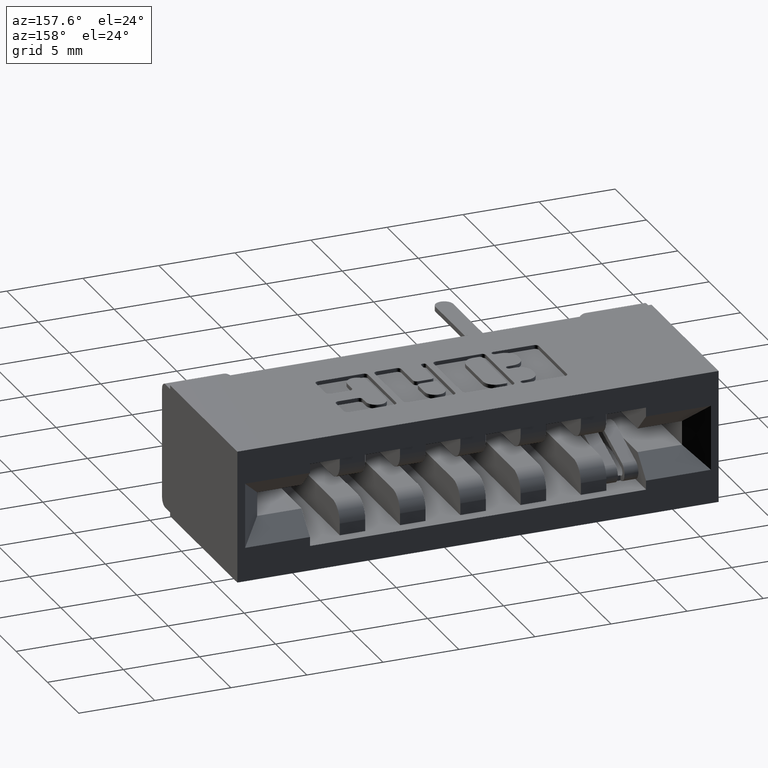
[diagram: clean part render]
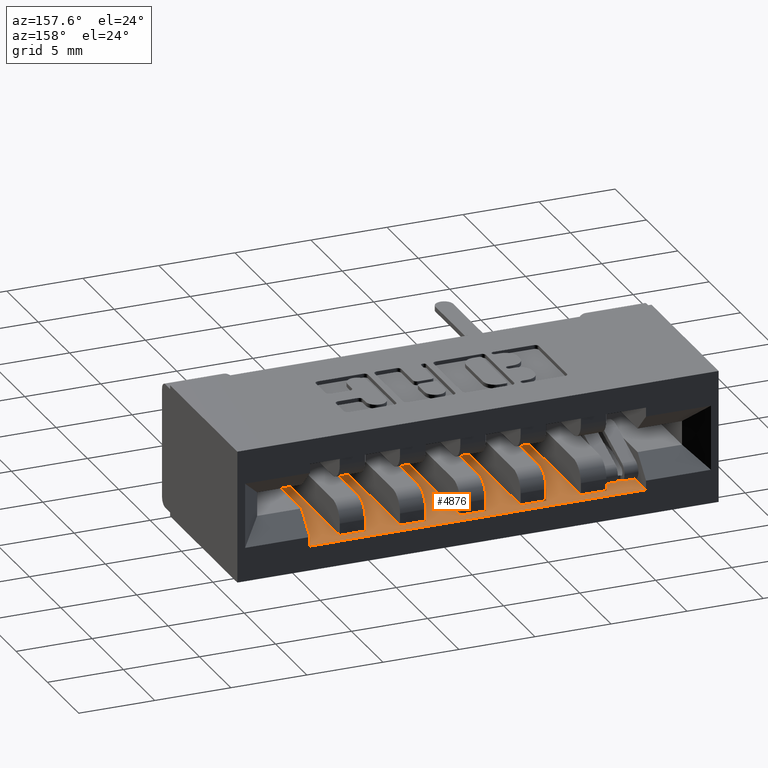
[diagram: same view with one face highlighted and labeled with its STEP entity id]
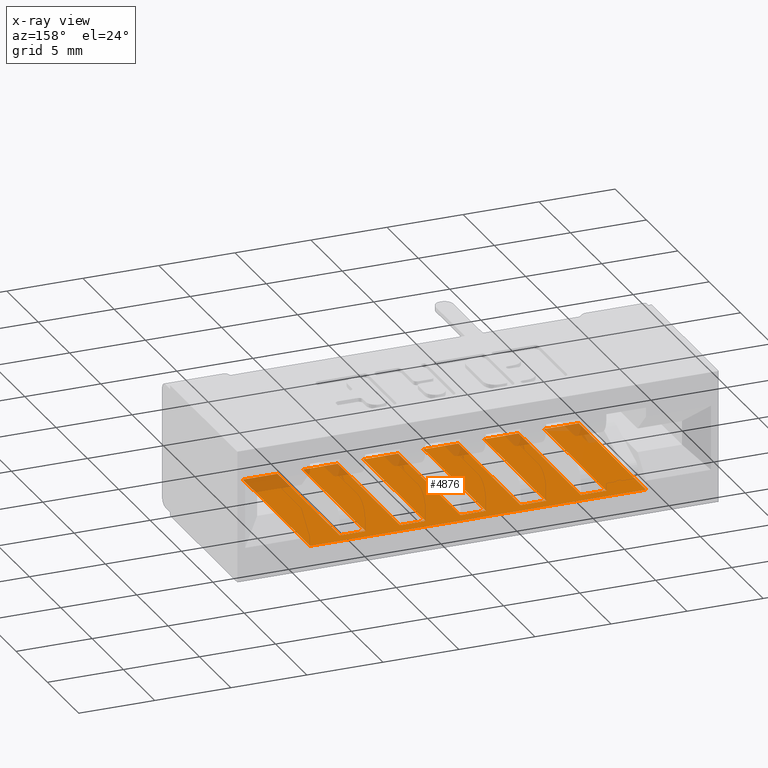
[diagram: x-ray of the same camera — body ghosted, the highlighted face saturated]
A machine part, auxiliary view. The second image highlights one B-rep face of the part: STEP entity #4876.
The next image is the same camera in x-ray: the body ghosted, the highlighted face saturated — about 10% of this face is hidden behind the body in this view.
In plain terms, the highlighted planar face has unit normal (0, 0, -1).
Its self-contained STEP definition (entity closure, byte-faithful):
#99 = EDGE_CURVE ( 'NONE', #7341, #2426, #2929, .T. ) ;
#135 = DIRECTION ( 'NONE',  ( 1.000000000000000000, 0.0000000000000000000, 0.0000000000000000000 ) ) ;
#163 = EDGE_CURVE ( 'NONE', #5952, #2535, #1789, .T. ) ;
#190 = CARTESIAN_POINT ( 'NONE',  ( 1.266000000000000500, 0.1160000000000000100, -0.2790000000000000300 ) ) ;
#215 = CARTESIAN_POINT ( 'NONE',  ( 0.5760000000000004000, 0.05099999999999999700, -0.2790000000000000300 ) ) ;
#326 = VECTOR ( 'NONE', #3238, 39.37007874015748100 ) ;
#376 = DIRECTION ( 'NONE',  ( -0.0000000000000000000, 1.000000000000000000, -0.0000000000000000000 ) ) ;
#386 = CARTESIAN_POINT ( 'NONE',  ( 0.9540000000000004000, 0.1160000000000000100, -0.2790000000000000300 ) ) ;
#393 = VERTEX_POINT ( 'NONE', #7529 ) ;
#422 = CARTESIAN_POINT ( 'NONE',  ( 1.266000000000000500, 0.05099999999999999700, -0.2790000000000000300 ) ) ;
#496 = LINE ( 'NONE', #3005, #6290 ) ;
#749 = DIRECTION ( 'NONE',  ( 1.000000000000000000, 0.0000000000000000000, 0.0000000000000000000 ) ) ;
#794 = VECTOR ( 'NONE', #4899, 39.37007874015748100 ) ;
#1244 = PLANE ( 'NONE',  #6353 ) ;
#1283 = EDGE_CURVE ( 'NONE', #4619, #3731, #8214, .T. ) ;
#1368 = VECTOR ( 'NONE', #8497, 39.37007874015748100 ) ;
#1460 = VERTEX_POINT ( 'NONE', #2305 ) ;
#1499 = VECTOR ( 'NONE', #5869, 39.37007874015748100 ) ;
#1503 = DIRECTION ( 'NONE',  ( 1.000000000000000000, 0.0000000000000000000, 0.0000000000000000000 ) ) ;
#1604 = CARTESIAN_POINT ( 'NONE',  ( 0.8880000000000004600, 0.05099999999999999700, -0.2790000000000000300 ) ) ;
#1638 = EDGE_CURVE ( 'NONE', #4121, #7970, #5990, .T. ) ;
#1644 = VECTOR ( 'NONE', #8508, 39.37007874015748100 ) ;
#1682 = VECTOR ( 'NONE', #2539, 39.37007874015748100 ) ;
#1755 = VECTOR ( 'NONE', #6426, 39.37007874015748100 ) ;
#1781 = EDGE_CURVE ( 'NONE', #4684, #7341, #4886, .T. ) ;
#1789 = LINE ( 'NONE', #3044, #1755 ) ;
#1797 = EDGE_CURVE ( 'NONE', #2352, #393, #496, .T. ) ;
#1856 = DIRECTION ( 'NONE',  ( -0.0000000000000000000, 1.000000000000000000, -0.0000000000000000000 ) ) ;
#1904 = EDGE_CURVE ( 'NONE', #2340, #7356, #6876, .T. ) ;
#1966 = LINE ( 'NONE', #386, #3659 ) ;
#2009 = EDGE_CURVE ( 'NONE', #6434, #4108, #5685, .T. ) ;
#2061 = EDGE_CURVE ( 'NONE', #3285, #2426, #7839, .T. ) ;
#2063 = DIRECTION ( 'NONE',  ( -0.0000000000000000000, 1.000000000000000000, -0.0000000000000000000 ) ) ;
#2305 = CARTESIAN_POINT ( 'NONE',  ( 1.200000000000000400, 0.05099999999999999700, -0.2790000000000000300 ) ) ;
#2340 = VERTEX_POINT ( 'NONE', #3512 ) ;
#2346 = EDGE_CURVE ( 'NONE', #3003, #7065, #8707, .T. ) ;
#2352 = VERTEX_POINT ( 'NONE', #4061 ) ;
#2426 = VERTEX_POINT ( 'NONE', #3026 ) ;
#2432 = CARTESIAN_POINT ( 'NONE',  ( 1.266000000000000500, 0.4419999999999999500, -0.2790000000000000300 ) ) ;
#2535 = VERTEX_POINT ( 'NONE', #4304 ) ;
#2539 = DIRECTION ( 'NONE',  ( -0.0000000000000000000, 1.000000000000000000, -0.0000000000000000000 ) ) ;
#2570 = VECTOR ( 'NONE', #6194, 39.37007874015748100 ) ;
#2648 = EDGE_CURVE ( 'NONE', #2340, #3285, #1966, .T. ) ;
#2756 = LINE ( 'NONE', #4448, #7903 ) ;
#2806 = CARTESIAN_POINT ( 'NONE',  ( 0.5760000000000004000, 0.4419999999999999500, -0.2790000000000000300 ) ) ;
#2830 = EDGE_CURVE ( 'NONE', #3902, #6434, #5885, .T. ) ;
#2846 = CARTESIAN_POINT ( 'NONE',  ( 0.5760000000000004000, 0.05099999999999999700, -0.2790000000000000300 ) ) ;
#2929 = LINE ( 'NONE', #8019, #2570 ) ;
#3003 = VERTEX_POINT ( 'NONE', #6272 ) ;
#3005 = CARTESIAN_POINT ( 'NONE',  ( 1.356000000000000500, 0.4419999999999999500, -0.2790000000000000300 ) ) ;
#3026 = CARTESIAN_POINT ( 'NONE',  ( 0.8880000000000004600, 0.4419999999999999500, -0.2790000000000000300 ) ) ;
#3044 = CARTESIAN_POINT ( 'NONE',  ( 0.4860000000000004300, 0.1160000000000000100, -0.2790000000000000300 ) ) ;
#3238 = DIRECTION ( 'NONE',  ( -1.000000000000000000, -0.0000000000000000000, -0.0000000000000000000 ) ) ;
#3285 = VERTEX_POINT ( 'NONE', #8626 ) ;
#3312 = CARTESIAN_POINT ( 'NONE',  ( 0.4860000000000004300, 0.4419999999999999500, -0.2790000000000000300 ) ) ;
#3317 = LINE ( 'NONE', #7296, #1368 ) ;
#3511 = LINE ( 'NONE', #7579, #8539 ) ;
#3512 = CARTESIAN_POINT ( 'NONE',  ( 0.9540000000000004000, 0.05099999999999999700, -0.2790000000000000300 ) ) ;
#3596 = LINE ( 'NONE', #4700, #1682 ) ;
#3597 = EDGE_CURVE ( 'NONE', #7356, #4108, #2756, .T. ) ;
#3659 = VECTOR ( 'NONE', #1856, 39.37007874015748100 ) ;
#3669 = LINE ( 'NONE', #5627, #1499 ) ;
#3684 = CARTESIAN_POINT ( 'NONE',  ( 0.5760000000000004000, 0.05099999999999999700, -0.2790000000000000300 ) ) ;
#3726 = CARTESIAN_POINT ( 'NONE',  ( 1.044000000000000500, 0.05099999999999999700, -0.2790000000000000300 ) ) ;
#3731 = VERTEX_POINT ( 'NONE', #8549 ) ;
#3736 = EDGE_CURVE ( 'NONE', #3902, #1460, #3511, .T. ) ;
#3789 = VECTOR ( 'NONE', #4131, 39.37007874015748100 ) ;
#3804 = CARTESIAN_POINT ( 'NONE',  ( 0.7980000000000003800, 0.05099999999999999700, -0.2790000000000000300 ) ) ;
#3866 = CARTESIAN_POINT ( 'NONE',  ( 0.5760000000000004000, 0.05099999999999999700, -0.2790000000000000300 ) ) ;
#3902 = VERTEX_POINT ( 'NONE', #7775 ) ;
#3930 = CARTESIAN_POINT ( 'NONE',  ( 0.5760000000000004000, 0.05099999999999999700, -0.2790000000000000300 ) ) ;
#3949 = CARTESIAN_POINT ( 'NONE',  ( 0.6420000000000004600, 0.05099999999999999700, -0.2790000000000000300 ) ) ;
#3969 = EDGE_CURVE ( 'NONE', #5690, #7065, #4849, .T. ) ;
#4061 = CARTESIAN_POINT ( 'NONE',  ( 1.356000000000000500, 0.05100000000000001800, -0.2790000000000000300 ) ) ;
#4108 = VERTEX_POINT ( 'NONE', #6327 ) ;
#4121 = VERTEX_POINT ( 'NONE', #3949 ) ;
#4131 = DIRECTION ( 'NONE',  ( -1.000000000000000000, -0.0000000000000000000, -0.0000000000000000000 ) ) ;
#4164 = VECTOR ( 'NONE', #4565, 39.37007874015748100 ) ;
#4185 = CARTESIAN_POINT ( 'NONE',  ( 0.7320000000000004300, 0.4419999999999999500, -0.2790000000000000300 ) ) ;
#4192 = CARTESIAN_POINT ( 'NONE',  ( 0.4860000000000004300, 0.4419999999999999500, -0.2790000000000000300 ) ) ;
#4247 = DIRECTION ( 'NONE',  ( -0.0000000000000000000, 1.000000000000000000, -0.0000000000000000000 ) ) ;
#4260 = EDGE_CURVE ( 'NONE', #6431, #6043, #4839, .T. ) ;
#4304 = CARTESIAN_POINT ( 'NONE',  ( 0.4860000000000004300, 0.4729999999999999800, -0.2790000000000000300 ) ) ;
#4314 = CARTESIAN_POINT ( 'NONE',  ( 0.5760000000000004000, 0.05099999999999999700, -0.2790000000000000300 ) ) ;
#4383 = LINE ( 'NONE', #4509, #4164 ) ;
#4448 = CARTESIAN_POINT ( 'NONE',  ( 1.044000000000000500, 0.1160000000000000100, -0.2790000000000000300 ) ) ;
#4449 = CARTESIAN_POINT ( 'NONE',  ( 0.5760000000000004000, 0.1160000000000000100, -0.2790000000000000300 ) ) ;
#4509 = CARTESIAN_POINT ( 'NONE',  ( 0.7320000000000004300, 0.1160000000000000100, -0.2790000000000000300 ) ) ;
#4565 = DIRECTION ( 'NONE',  ( -0.0000000000000000000, 1.000000000000000000, -0.0000000000000000000 ) ) ;
#4604 = VERTEX_POINT ( 'NONE', #422 ) ;
#4619 = VERTEX_POINT ( 'NONE', #2432 ) ;
#4684 = VERTEX_POINT ( 'NONE', #3804 ) ;
#4700 = CARTESIAN_POINT ( 'NONE',  ( 1.200000000000000400, 0.1160000000000000100, -0.2790000000000000300 ) ) ;
#4737 = LINE ( 'NONE', #190, #7964 ) ;
#4740 = FACE_OUTER_BOUND ( 'NONE', #5635, .T. ) ;
#4795 = VECTOR ( 'NONE', #7120, 39.37007874015748100 ) ;
#4834 = EDGE_CURVE ( 'NONE', #5952, #5690, #8342, .T. ) ;
#4839 = LINE ( 'NONE', #4884, #794 ) ;
#4849 = LINE ( 'NONE', #4449, #8080 ) ;
#4876 = ADVANCED_FACE ( 'NONE', ( #4740 ), #1244, .F. ) ;
#4884 = CARTESIAN_POINT ( 'NONE',  ( 0.4860000000000004300, 0.4419999999999999500, -0.2790000000000000300 ) ) ;
#4886 = LINE ( 'NONE', #3930, #6471 ) ;
#4899 = DIRECTION ( 'NONE',  ( -1.000000000000000000, -0.0000000000000000000, -0.0000000000000000000 ) ) ;
#4926 = CARTESIAN_POINT ( 'NONE',  ( 0.4860000000000004300, 0.4419999999999999500, -0.2790000000000000300 ) ) ;
#4993 = DIRECTION ( 'NONE',  ( -0.0000000000000000000, 1.000000000000000000, -0.0000000000000000000 ) ) ;
#5145 = EDGE_CURVE ( 'NONE', #4604, #4619, #4737, .T. ) ;
#5311 = EDGE_CURVE ( 'NONE', #1460, #3731, #3596, .T. ) ;
#5459 = VECTOR ( 'NONE', #6453, 39.37007874015748100 ) ;
#5563 = VECTOR ( 'NONE', #7564, 39.37007874015748100 ) ;
#5588 = CARTESIAN_POINT ( 'NONE',  ( 0.7320000000000004300, 0.05099999999999999700, -0.2790000000000000300 ) ) ;
#5627 = CARTESIAN_POINT ( 'NONE',  ( 0.6420000000000004600, 0.1160000000000000100, -0.2790000000000000300 ) ) ;
#5635 = EDGE_LOOP ( 'NONE', ( #7519, #7527, #7546, #7562, #7568, #7588, #7591, #7593, #7605, #7613, #7629, #7667, #7676, #7680, #7726, #7736, #7759, #7791, #7793, #7802, #7812, #7819, #7844, #7854 ) ) ;
#5685 = LINE ( 'NONE', #8814, #1644 ) ;
#5690 = VERTEX_POINT ( 'NONE', #3684 ) ;
#5869 = DIRECTION ( 'NONE',  ( -0.0000000000000000000, 1.000000000000000000, -0.0000000000000000000 ) ) ;
#5885 = LINE ( 'NONE', #7541, #5459 ) ;
#5952 = VERTEX_POINT ( 'NONE', #6266 ) ;
#5990 = LINE ( 'NONE', #3866, #9107 ) ;
#6043 = VERTEX_POINT ( 'NONE', #4185 ) ;
#6194 = DIRECTION ( 'NONE',  ( -0.0000000000000000000, 1.000000000000000000, -0.0000000000000000000 ) ) ;
#6266 = CARTESIAN_POINT ( 'NONE',  ( 0.4860000000000004300, 0.05099999999999999700, -0.2790000000000000300 ) ) ;
#6272 = CARTESIAN_POINT ( 'NONE',  ( 0.6420000000000004600, 0.4419999999999999500, -0.2790000000000000300 ) ) ;
#6290 = VECTOR ( 'NONE', #4247, 39.37007874015748100 ) ;
#6327 = CARTESIAN_POINT ( 'NONE',  ( 1.044000000000000500, 0.4419999999999999500, -0.2790000000000000300 ) ) ;
#6353 = AXIS2_PLACEMENT_3D ( 'NONE', #8372, #7621, #7597 ) ;
#6426 = DIRECTION ( 'NONE',  ( -0.0000000000000000000, 1.000000000000000000, -0.0000000000000000000 ) ) ;
#6431 = VERTEX_POINT ( 'NONE', #8564 ) ;
#6434 = VERTEX_POINT ( 'NONE', #7850 ) ;
#6453 = DIRECTION ( 'NONE',  ( -0.0000000000000000000, 1.000000000000000000, -0.0000000000000000000 ) ) ;
#6471 = VECTOR ( 'NONE', #135, 39.37007874015748100 ) ;
#6529 = VECTOR ( 'NONE', #9074, 39.37007874015748100 ) ;
#6744 = DIRECTION ( 'NONE',  ( 1.000000000000000000, 0.0000000000000000000, 0.0000000000000000000 ) ) ;
#6876 = LINE ( 'NONE', #215, #8307 ) ;
#7065 = VERTEX_POINT ( 'NONE', #2806 ) ;
#7120 = DIRECTION ( 'NONE',  ( -1.000000000000000000, -0.0000000000000000000, -0.0000000000000000000 ) ) ;
#7296 = CARTESIAN_POINT ( 'NONE',  ( 0.7980000000000003800, 0.1160000000000000100, -0.2790000000000000300 ) ) ;
#7341 = VERTEX_POINT ( 'NONE', #1604 ) ;
#7356 = VERTEX_POINT ( 'NONE', #3726 ) ;
#7477 = DIRECTION ( 'NONE',  ( 1.000000000000000000, 0.0000000000000000000, 0.0000000000000000000 ) ) ;
#7519 = ORIENTED_EDGE ( 'NONE', *, *, #5145, .F. ) ;
#7527 = ORIENTED_EDGE ( 'NONE', *, *, #7702, .T. ) ;
#7529 = CARTESIAN_POINT ( 'NONE',  ( 1.356000000000000500, 0.4729999999999999800, -0.2790000000000000300 ) ) ;
#7541 = CARTESIAN_POINT ( 'NONE',  ( 1.110000000000000500, 0.1160000000000000100, -0.2790000000000000300 ) ) ;
#7546 = ORIENTED_EDGE ( 'NONE', *, *, #1797, .T. ) ;
#7562 = ORIENTED_EDGE ( 'NONE', *, *, #8790, .T. ) ;
#7564 = DIRECTION ( 'NONE',  ( -1.000000000000000000, 0.0000000000000000000, 0.0000000000000000000 ) ) ;
#7568 = ORIENTED_EDGE ( 'NONE', *, *, #163, .F. ) ;
#7579 = CARTESIAN_POINT ( 'NONE',  ( 0.5760000000000004000, 0.05099999999999999700, -0.2790000000000000300 ) ) ;
#7588 = ORIENTED_EDGE ( 'NONE', *, *, #4834, .T. ) ;
#7591 = ORIENTED_EDGE ( 'NONE', *, *, #3969, .T. ) ;
#7593 = ORIENTED_EDGE ( 'NONE', *, *, #2346, .F. ) ;
#7597 = DIRECTION ( 'NONE',  ( -1.000000000000000000, 0.0000000000000000000, 0.0000000000000000000 ) ) ;
#7605 = ORIENTED_EDGE ( 'NONE', *, *, #7994, .F. ) ;
#7613 = ORIENTED_EDGE ( 'NONE', *, *, #1638, .T. ) ;
#7621 = DIRECTION ( 'NONE',  ( -0.0000000000000000000, 0.0000000000000000000, -1.000000000000000000 ) ) ;
#7629 = ORIENTED_EDGE ( 'NONE', *, *, #7824, .T. ) ;
#7667 = ORIENTED_EDGE ( 'NONE', *, *, #4260, .F. ) ;
#7676 = ORIENTED_EDGE ( 'NONE', *, *, #7758, .F. ) ;
#7680 = ORIENTED_EDGE ( 'NONE', *, *, #1781, .T. ) ;
#7702 = EDGE_CURVE ( 'NONE', #4604, #2352, #9056, .T. ) ;
#7726 = ORIENTED_EDGE ( 'NONE', *, *, #99, .T. ) ;
#7736 = ORIENTED_EDGE ( 'NONE', *, *, #2061, .F. ) ;
#7758 = EDGE_CURVE ( 'NONE', #4684, #6431, #3317, .T. ) ;
#7759 = ORIENTED_EDGE ( 'NONE', *, *, #2648, .F. ) ;
#7775 = CARTESIAN_POINT ( 'NONE',  ( 1.110000000000000500, 0.05099999999999999700, -0.2790000000000000300 ) ) ;
#7791 = ORIENTED_EDGE ( 'NONE', *, *, #1904, .T. ) ;
#7793 = ORIENTED_EDGE ( 'NONE', *, *, #3597, .T. ) ;
#7802 = ORIENTED_EDGE ( 'NONE', *, *, #2009, .F. ) ;
#7812 = ORIENTED_EDGE ( 'NONE', *, *, #2830, .F. ) ;
#7819 = ORIENTED_EDGE ( 'NONE', *, *, #3736, .T. ) ;
#7824 = EDGE_CURVE ( 'NONE', #7970, #6043, #4383, .T. ) ;
#7839 = LINE ( 'NONE', #3312, #326 ) ;
#7844 = ORIENTED_EDGE ( 'NONE', *, *, #5311, .T. ) ;
#7850 = CARTESIAN_POINT ( 'NONE',  ( 1.110000000000000500, 0.4419999999999999500, -0.2790000000000000300 ) ) ;
#7854 = ORIENTED_EDGE ( 'NONE', *, *, #1283, .F. ) ;
#7903 = VECTOR ( 'NONE', #376, 39.37007874015748100 ) ;
#7964 = VECTOR ( 'NONE', #4993, 39.37007874015748100 ) ;
#7970 = VERTEX_POINT ( 'NONE', #5588 ) ;
#7994 = EDGE_CURVE ( 'NONE', #4121, #3003, #3669, .T. ) ;
#8019 = CARTESIAN_POINT ( 'NONE',  ( 0.8880000000000004600, 0.1160000000000000100, -0.2790000000000000300 ) ) ;
#8080 = VECTOR ( 'NONE', #2063, 39.37007874015748100 ) ;
#8214 = LINE ( 'NONE', #4192, #4795 ) ;
#8307 = VECTOR ( 'NONE', #749, 39.37007874015748100 ) ;
#8342 = LINE ( 'NONE', #4314, #6529 ) ;
#8372 = CARTESIAN_POINT ( 'NONE',  ( 0.5760000000000004000, 0.1160000000000000100, -0.2790000000000000300 ) ) ;
#8497 = DIRECTION ( 'NONE',  ( -0.0000000000000000000, 1.000000000000000000, -0.0000000000000000000 ) ) ;
#8508 = DIRECTION ( 'NONE',  ( -1.000000000000000000, -0.0000000000000000000, -0.0000000000000000000 ) ) ;
#8539 = VECTOR ( 'NONE', #1503, 39.37007874015748100 ) ;
#8549 = CARTESIAN_POINT ( 'NONE',  ( 1.200000000000000400, 0.4419999999999999500, -0.2790000000000000300 ) ) ;
#8564 = CARTESIAN_POINT ( 'NONE',  ( 0.7980000000000003800, 0.4419999999999999500, -0.2790000000000000300 ) ) ;
#8626 = CARTESIAN_POINT ( 'NONE',  ( 0.9540000000000004000, 0.4419999999999999500, -0.2790000000000000300 ) ) ;
#8663 = CARTESIAN_POINT ( 'NONE',  ( 0.5760000000000004000, 0.4729999999999999800, -0.2790000000000000300 ) ) ;
#8707 = LINE ( 'NONE', #4926, #3789 ) ;
#8785 = LINE ( 'NONE', #8663, #5563 ) ;
#8790 = EDGE_CURVE ( 'NONE', #393, #2535, #8785, .T. ) ;
#8814 = CARTESIAN_POINT ( 'NONE',  ( 0.4860000000000004300, 0.4419999999999999500, -0.2790000000000000300 ) ) ;
#8879 = VECTOR ( 'NONE', #6744, 39.37007874015748100 ) ;
#9056 = LINE ( 'NONE', #2846, #8879 ) ;
#9074 = DIRECTION ( 'NONE',  ( 1.000000000000000000, 0.0000000000000000000, 0.0000000000000000000 ) ) ;
#9107 = VECTOR ( 'NONE', #7477, 39.37007874015748100 ) ;